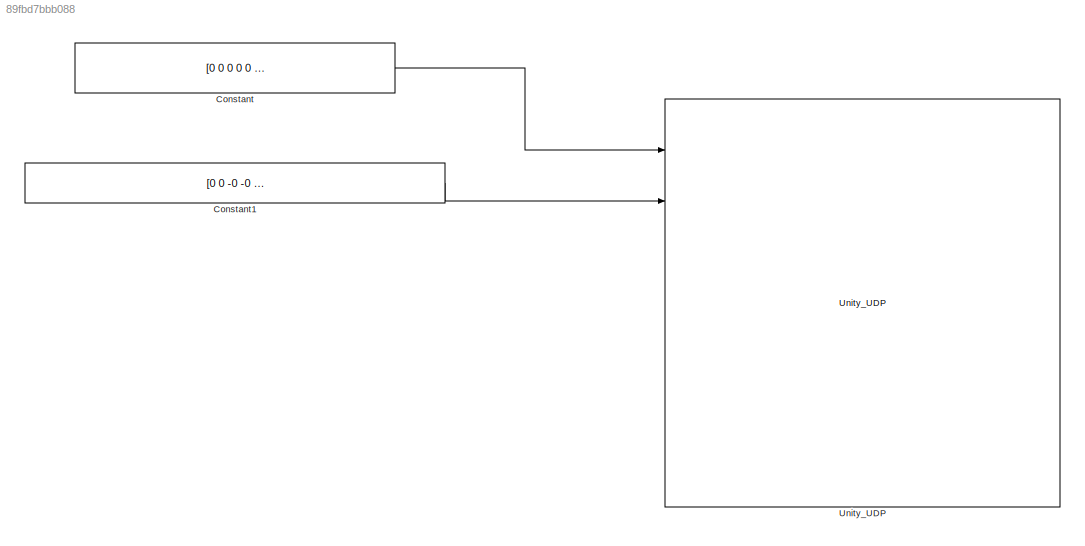
MODEL slx_89fbd7bbb088
KIND model
CONFIG AbsTol = auto
CONFIG EnableMultiTasking = off
CONFIG FixedStep = 1e-3
CONFIG MaxStep = auto
CONFIG MinStep = auto
CONFIG RelTol = 1e-3
CONFIG SampleTimeConstraint = Unconstrained
CONFIG SolverName = ode1
CONFIG StartTime = 0.0
CONFIG StopTime = inf
BLOCK [Constant] Constant
  Value = [0 0 0 0 0 0 0 0 0 50 0 0]'*pi/180
BLOCK [Constant] Constant1
  Value = [0 0 -0 -0 0 0 0 0 0 0 0 40 40 40 0 0 0 40 40 40 40 30 30 30 30 30]'*pi/180
BLOCK [Reference] Unity_UDP  REF=unity_lib_UDP/Unity_UDP
  Ports = [7]
  SourceBlock = unity_lib_UDP/Unity_UDP
LINE Constant1:1 -> Unity_UDP:2
LINE Constant:1 -> Unity_UDP:1
